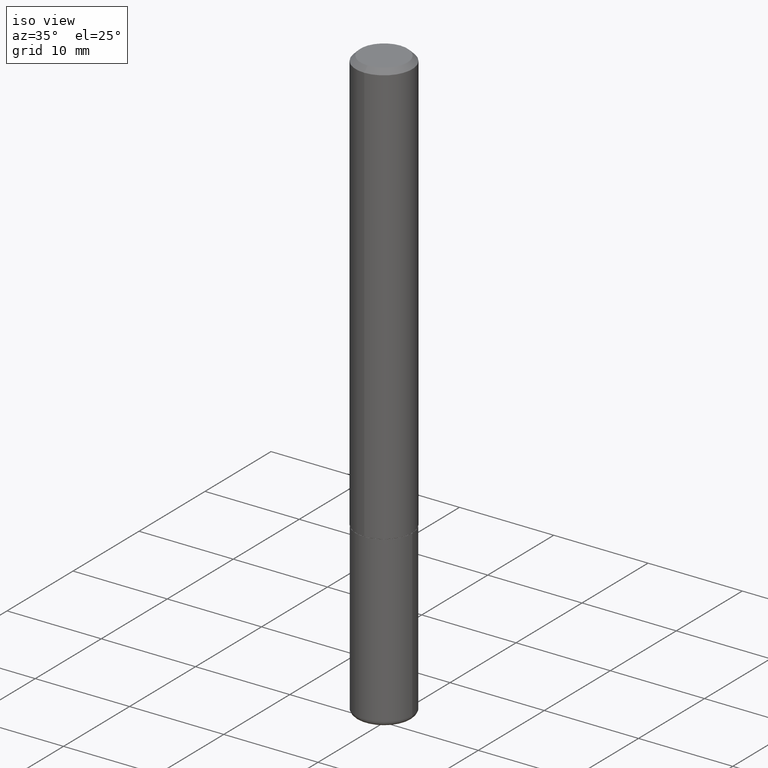
[diagram: clean part render]
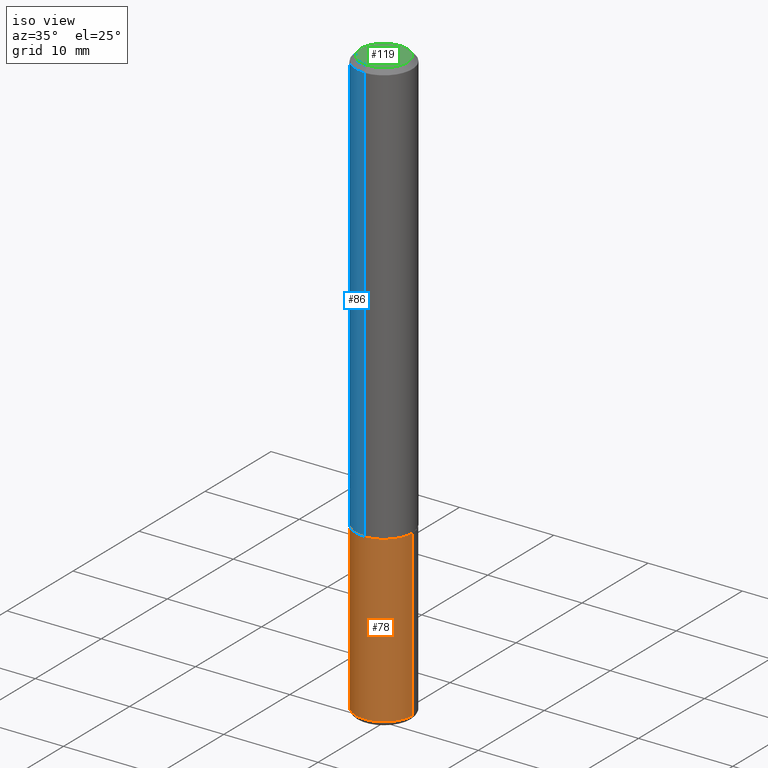
[diagram: same view with three faces highlighted in distinct colors, each labeled with its STEP entity id]
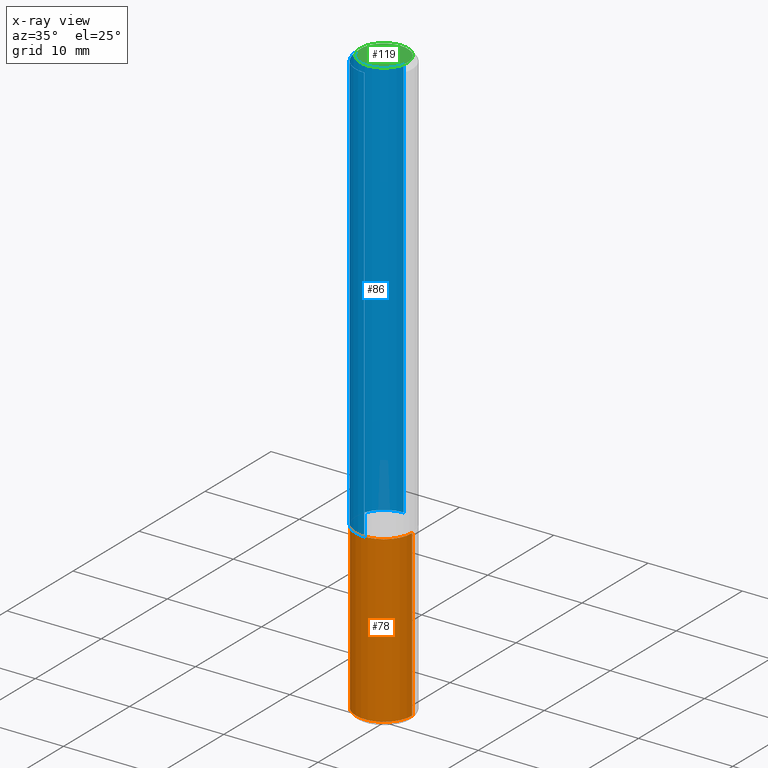
[diagram: x-ray of the same camera — body ghosted, the three highlighted faces saturated]
A machine part, iso view with three faces highlighted in distinct colors.
The next image is the same camera in x-ray (body ghosted, the three faces saturated) — at least one of them is partly hidden behind the body in this view.
Their STEP definitions:

[orange] entity #78 — the highlighted cylindrical surface (edge-blend (fillet) strip) has radius 2.9997 mm, axis along (-0, 0, 1).
#6 = CARTESIAN_POINT ( 'NONE',  ( -0.1180999999999999966, 8.391509709326782957E-16, -5.809262341591043784E-30 ) ) ;
#12 = CARTESIAN_POINT ( 'NONE',  ( 0.000000000000000000, 0.000000000000000000, 0.000000000000000000 ) ) ;
#18 = AXIS2_PLACEMENT_3D ( 'NONE', #12, #223, #247 ) ;
#19 = AXIS2_PLACEMENT_3D ( 'NONE', #44, #308, #175 ) ;
#22 = CARTESIAN_POINT ( 'NONE',  ( -0.1181000000000000105, -7.751988011424766742E-15, -2.460600000000000342 ) ) ;
#32 = CARTESIAN_POINT ( 'NONE',  ( 0.1180999999999999966, -8.246878922347480654E-16, 5.758764772215000440E-30 ) ) ;
#44 = CARTESIAN_POINT ( 'NONE',  ( 4.332392537037588763E-29, -6.185508339894517569E-15, -1.771600000000000286 ) ) ;
#48 = VERTEX_POINT ( 'NONE', #22 ) ;
#57 = EDGE_CURVE ( 'NONE', #208, #189, #262, .T. ) ;
#59 = VECTOR ( 'NONE', #65, 39.37007874015748143 ) ;
#65 = DIRECTION ( 'NONE',  ( -2.445468806185136877E-29, 3.491481338843145188E-15, 1.000000000000000000 ) ) ;
#74 = CARTESIAN_POINT ( 'NONE',  ( 0.1181000000000000105, -9.415826874592192413E-15, -2.460600000000000342 ) ) ;
#78 = ADVANCED_FACE ( 'NONE', ( #397 ), #132, .T. ) ;
#80 = CARTESIAN_POINT ( 'NONE',  ( 0.1180999999999999966, -7.010196232129265043E-15, -1.771600000000000286 ) ) ;
#104 = VERTEX_POINT ( 'NONE', #288 ) ;
#115 = ORIENTED_EDGE ( 'NONE', *, *, #134, .F. ) ;
#131 = CARTESIAN_POINT ( 'NONE',  ( 6.017320544499148018E-29, -8.591138982357444151E-15, -2.460600000000000342 ) ) ;
#132 = CYLINDRICAL_SURFACE ( 'NONE', #18, 0.1180999999999999966 ) ;
#134 = EDGE_CURVE ( 'NONE', #48, #104, #388, .T. ) ;
#146 = CIRCLE ( 'NONE', #19, 0.1180999999999999966 ) ;
#161 = DIRECTION ( 'NONE',  ( -2.445468806185136877E-29, 3.491481338843145188E-15, 1.000000000000000000 ) ) ;
#171 = EDGE_CURVE ( 'NONE', #48, #208, #365, .T. ) ;
#175 = DIRECTION ( 'NONE',  ( 1.000000000000000000, -6.982962677686265133E-15, 0.000000000000000000 ) ) ;
#189 = VERTEX_POINT ( 'NONE', #80 ) ;
#208 = VERTEX_POINT ( 'NONE', #74 ) ;
#223 = DIRECTION ( 'NONE',  ( -2.445468806185136597E-29, 3.491481338843145583E-15, 1.000000000000000000 ) ) ;
#247 = DIRECTION ( 'NONE',  ( 1.000000000000000000, -6.982962677686266711E-15, 4.876176775795936353E-29 ) ) ;
#251 = DIRECTION ( 'NONE',  ( 1.000000000000000000, -6.982962677686273021E-15, 0.000000000000000000 ) ) ;
#253 = AXIS2_PLACEMENT_3D ( 'NONE', #131, #290, #251 ) ;
#262 = LINE ( 'NONE', #32, #59 ) ;
#265 = ORIENTED_EDGE ( 'NONE', *, *, #171, .T. ) ;
#288 = CARTESIAN_POINT ( 'NONE',  ( -0.1180999999999999966, -6.549172690193302663E-15, -1.771600000000000286 ) ) ;
#290 = DIRECTION ( 'NONE',  ( -2.445468806185136597E-29, 3.491481338843145583E-15, 1.000000000000000000 ) ) ;
#308 = DIRECTION ( 'NONE',  ( -2.445468806185136597E-29, 3.491481338843145583E-15, 1.000000000000000000 ) ) ;
#327 = EDGE_CURVE ( 'NONE', #104, #189, #146, .T. ) ;
#342 = EDGE_LOOP ( 'NONE', ( #115, #265, #383, #348 ) ) ;
#343 = VECTOR ( 'NONE', #161, 39.37007874015748143 ) ;
#348 = ORIENTED_EDGE ( 'NONE', *, *, #327, .F. ) ;
#365 = CIRCLE ( 'NONE', #253, 0.1180999999999999966 ) ;
#383 = ORIENTED_EDGE ( 'NONE', *, *, #57, .T. ) ;
#388 = LINE ( 'NONE', #6, #343 ) ;
#397 = FACE_OUTER_BOUND ( 'NONE', #342, .T. ) ;

[blue] entity #86 — the highlighted cylindrical surface (edge-blend (fillet) strip) has radius 2.9997 mm, axis along (-0, 0, 1).
#7 = EDGE_CURVE ( 'NONE', #156, #144, #296, .T. ) ;
#17 = CARTESIAN_POINT ( 'NONE',  ( -8.102248135368172434E-16, -0.1181000000000000660, -0.01999999999999962919 ) ) ;
#30 = DIRECTION ( 'NONE',  ( -2.443238767566187138E-29, 3.494674881071397310E-15, 1.000000000000000000 ) ) ;
#35 = CARTESIAN_POINT ( 'NONE',  ( -8.246878922347488542E-16, -0.1181000000000001215, 4.127211034545323724E-16 ) ) ;
#41 = EDGE_CURVE ( 'NONE', #156, #371, #244, .T. ) ;
#42 = CARTESIAN_POINT ( 'NONE',  ( 8.391509709327014685E-16, 0.1180999999999940708, -1.770600000000000840 ) ) ;
#49 = DIRECTION ( 'NONE',  ( -6.982962677686265922E-15, -1.000000000000000000, 3.505890868245046092E-15 ) ) ;
#56 = EDGE_LOOP ( 'NONE', ( #113, #123, #173, #406 ) ) ;
#86 = ADVANCED_FACE ( 'NONE', ( #97 ), #390, .T. ) ;
#91 = CARTESIAN_POINT ( 'NONE',  ( 8.391509709326790846E-16, 0.1181000000000001215, -4.127211034545323724E-16 ) ) ;
#97 = FACE_OUTER_BOUND ( 'NONE', #56, .T. ) ;
#102 = VECTOR ( 'NONE', #30, 39.37007874015748143 ) ;
#108 = AXIS2_PLACEMENT_3D ( 'NONE', #182, #413, #216 ) ;
#113 = ORIENTED_EDGE ( 'NONE', *, *, #41, .F. ) ;
#123 = ORIENTED_EDGE ( 'NONE', *, *, #7, .T. ) ;
#129 = EDGE_CURVE ( 'NONE', #144, #275, #230, .T. ) ;
#144 = VERTEX_POINT ( 'NONE', #228 ) ;
#156 = VERTEX_POINT ( 'NONE', #42 ) ;
#163 = DIRECTION ( 'NONE',  ( -6.982962677686265922E-15, -1.000000000000000000, 3.494674881071396522E-15 ) ) ;
#173 = ORIENTED_EDGE ( 'NONE', *, *, #129, .T. ) ;
#176 = DIRECTION ( 'NONE',  ( -2.443238767566187138E-29, 3.494674881071396916E-15, 1.000000000000000000 ) ) ;
#182 = CARTESIAN_POINT ( 'NONE',  ( 4.325998561852691348E-29, -6.187671344425017014E-15, -1.770600000000000174 ) ) ;
#188 = VECTOR ( 'NONE', #355, 39.37007874015748143 ) ;
#216 = DIRECTION ( 'NONE',  ( -6.982962677686265922E-15, -1.000000000000000000, 4.626330217890360659E-15 ) ) ;
#224 = EDGE_CURVE ( 'NONE', #371, #275, #315, .T. ) ;
#228 = CARTESIAN_POINT ( 'NONE',  ( -8.246878922347063544E-16, -0.1181000000000064221, -1.770599999999999730 ) ) ;
#230 = LINE ( 'NONE', #35, #102 ) ;
#244 = LINE ( 'NONE', #91, #188 ) ;
#261 = AXIS2_PLACEMENT_3D ( 'NONE', #345, #176, #49 ) ;
#275 = VERTEX_POINT ( 'NONE', #17 ) ;
#296 = CIRCLE ( 'NONE', #108, 0.1181000000000002326 ) ;
#304 = CARTESIAN_POINT ( 'NONE',  ( 8.246878922347484598E-16, 0.1180999999999999273, -0.02000000000000045838 ) ) ;
#315 = CIRCLE ( 'NONE', #261, 0.1180999999999999966 ) ;
#345 = CARTESIAN_POINT ( 'NONE',  ( 4.886477535132384121E-31, -6.989349762142808870E-17, -0.02000000000000004205 ) ) ;
#355 = DIRECTION ( 'NONE',  ( -2.443238767566187138E-29, 3.494674881071397310E-15, 1.000000000000000000 ) ) ;
#356 = DIRECTION ( 'NONE',  ( -2.443238767566187138E-29, 3.494674881071396916E-15, 1.000000000000000000 ) ) ;
#359 = CARTESIAN_POINT ( 'NONE',  ( 0.000000000000000000, 0.000000000000000000, 0.000000000000000000 ) ) ;
#371 = VERTEX_POINT ( 'NONE', #304 ) ;
#379 = AXIS2_PLACEMENT_3D ( 'NONE', #359, #356, #163 ) ;
#390 = CYLINDRICAL_SURFACE ( 'NONE', #379, 0.1181000000000001215 ) ;
#406 = ORIENTED_EDGE ( 'NONE', *, *, #224, .F. ) ;
#413 = DIRECTION ( 'NONE',  ( -2.443238767566187138E-29, 3.494674881071396916E-15, 1.000000000000000000 ) ) ;

[green] entity #119 — the highlighted planar face has unit normal (0, -0, -1).
#20 = EDGE_LOOP ( 'NONE', ( #150, #159 ) ) ;
#37 = CARTESIAN_POINT ( 'NONE',  ( 6.850286386810209760E-16, 0.09809999999999975684, -2.124813316387448711E-16 ) ) ;
#47 = DIRECTION ( 'NONE',  ( -6.982962677686265922E-15, -1.000000000000000000, 3.494674881071397705E-15 ) ) ;
#82 = AXIS2_PLACEMENT_3D ( 'NONE', #332, #181, #47 ) ;
#85 = VERTEX_POINT ( 'NONE', #370 ) ;
#117 = CARTESIAN_POINT ( 'NONE',  ( -7.416198335591014190E-16, -0.09809999999999975684, 6.035201542218197439E-16 ) ) ;
#119 = ADVANCED_FACE ( 'NONE', ( #319 ), #326, .F. ) ;
#133 = CIRCLE ( 'NONE', #403, 0.09809999999999975684 ) ;
#137 = CIRCLE ( 'NONE', #82, 0.09809999999999975684 ) ;
#150 = ORIENTED_EDGE ( 'NONE', *, *, #322, .T. ) ;
#159 = ORIENTED_EDGE ( 'NONE', *, *, #242, .T. ) ;
#166 = DIRECTION ( 'NONE',  ( 2.443238767566186578E-29, -3.494674881071397310E-15, -1.000000000000000000 ) ) ;
#181 = DIRECTION ( 'NONE',  ( -2.443238767566187138E-29, 3.494674881071396916E-15, 1.000000000000000000 ) ) ;
#237 = CARTESIAN_POINT ( 'NONE',  ( -6.369341406389364514E-45, 9.110357005365375257E-31, 2.606925483887165818E-16 ) ) ;
#239 = DIRECTION ( 'NONE',  ( -6.982962677686265922E-15, -1.000000000000000000, 3.494674881071397705E-15 ) ) ;
#242 = EDGE_CURVE ( 'NONE', #293, #85, #133, .T. ) ;
#293 = VERTEX_POINT ( 'NONE', #117 ) ;
#319 = FACE_OUTER_BOUND ( 'NONE', #20, .T. ) ;
#322 = EDGE_CURVE ( 'NONE', #85, #293, #137, .T. ) ;
#325 = DIRECTION ( 'NONE',  ( 6.982962677686265922E-15, 1.000000000000000000, -3.494674881071397310E-15 ) ) ;
#326 = PLANE ( 'NONE',  #386 ) ;
#332 = CARTESIAN_POINT ( 'NONE',  ( -6.369341406389364514E-45, 9.110357005365375257E-31, 2.606925483887165818E-16 ) ) ;
#370 = CARTESIAN_POINT ( 'NONE',  ( 7.548582654578847672E-16, 0.09809999999999975684, -8.213505744438662948E-17 ) ) ;
#386 = AXIS2_PLACEMENT_3D ( 'NONE', #37, #166, #325 ) ;
#403 = AXIS2_PLACEMENT_3D ( 'NONE', #237, #410, #239 ) ;
#410 = DIRECTION ( 'NONE',  ( -2.443238767566187138E-29, 3.494674881071396916E-15, 1.000000000000000000 ) ) ;